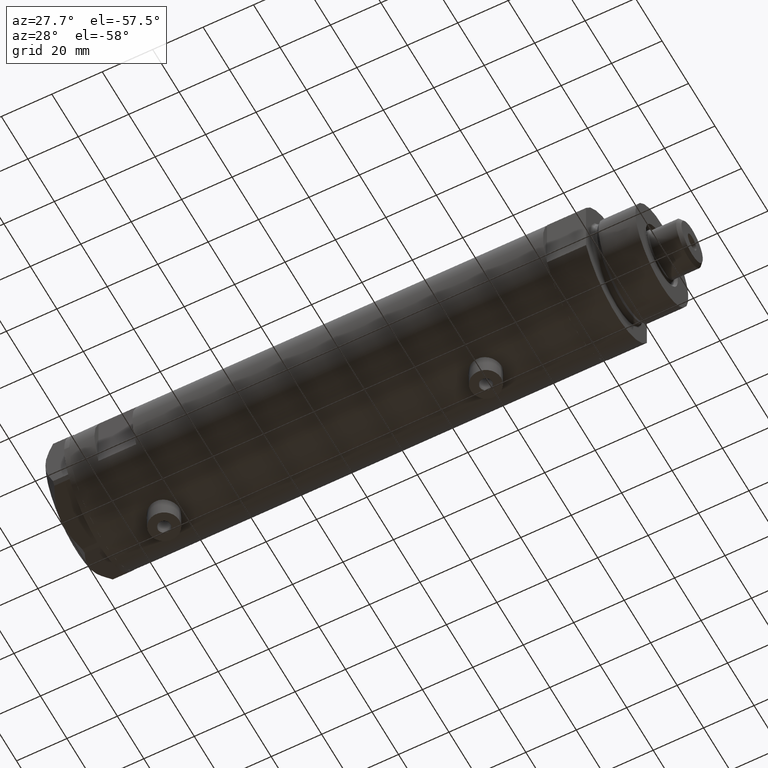
[diagram: clean part render]
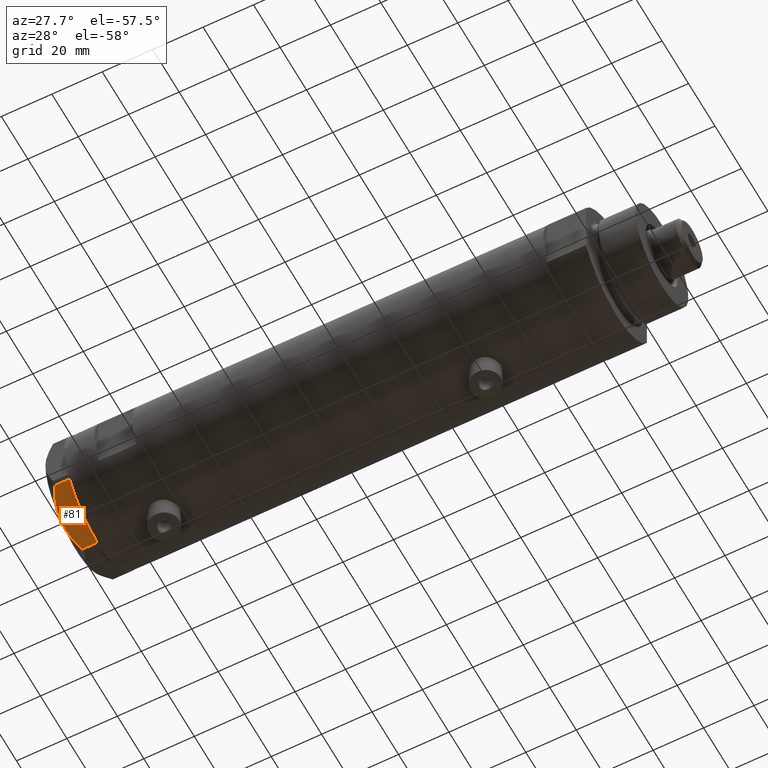
[diagram: same view with one face highlighted and labeled with its STEP entity id]
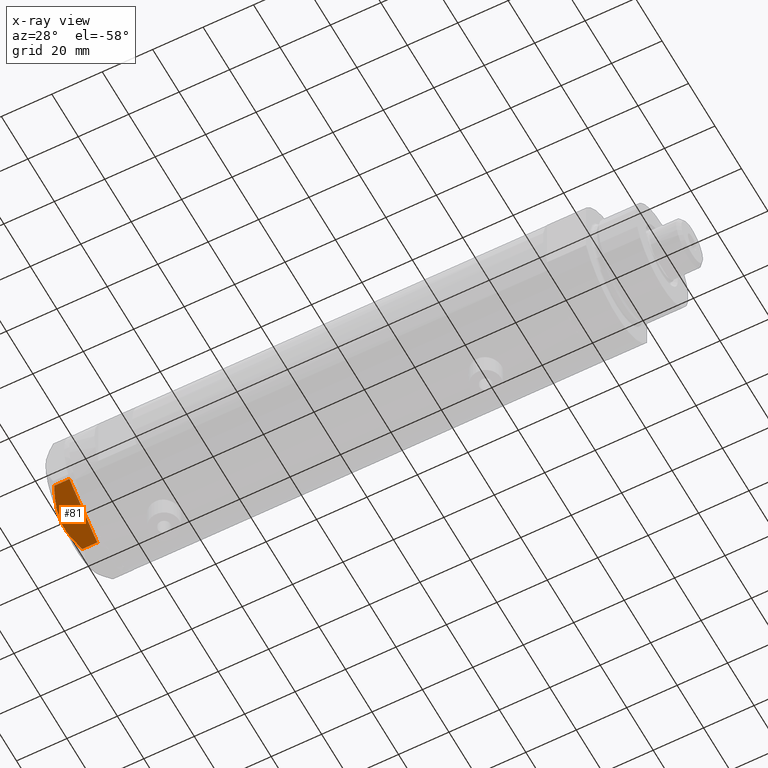
[diagram: x-ray of the same camera — body ghosted, the highlighted face saturated]
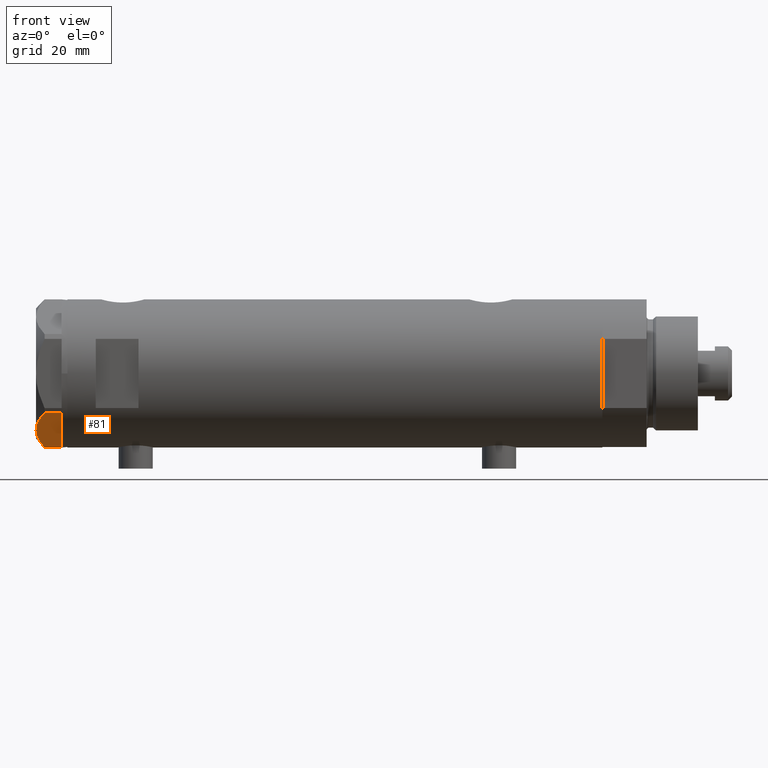
[diagram: same view with one face highlighted and labeled with its STEP entity id]
A machine part, auxiliary view. The second image highlights one B-rep face of the part: STEP entity #81.
The next image is the same camera in x-ray: the body ghosted, the highlighted face saturated — about 0% of this face is hidden behind the body in this view.
A second angle (front view) of the same face is appended — the face is thin or edge-on in the first view.
In plain terms, the highlighted planar face has unit normal (0, 0.5, 0.866).
Its self-contained STEP definition (entity closure, byte-faithful):
#81 = ADVANCED_FACE ( 'NONE', ( #2926 ), #3237, .F. ) ;
#121 = ORIENTED_EDGE ( 'NONE', *, *, #3123, .F. ) ;
#223 = CARTESIAN_POINT ( 'NONE',  ( -0.9699484522385772856, 25.99811238272273783, 0.000000000000000000 ) ) ;
#237 = CARTESIAN_POINT ( 'NONE',  ( 0.000000000000000000, 26.55811238272274366, 0.000000000000000000 ) ) ;
#258 = VECTOR ( 'NONE', #1888, 1000.000000000000000 ) ;
#287 = ORIENTED_EDGE ( 'NONE', *, *, #3790, .T. ) ;
#389 = DIRECTION ( 'NONE',  ( -0.8660254037844380415, -0.5000000000000008882, 0.000000000000000000 ) ) ;
#547 = VERTEX_POINT ( 'NONE', #4261 ) ;
#623 = DIRECTION ( 'NONE',  ( -0.8660254037844380415, -0.5000000000000008882, 0.000000000000000000 ) ) ;
#624 = CARTESIAN_POINT ( 'NONE',  ( -11.50000000000004441, 19.91858428704211548, 9.000000000000000000 ) ) ;
#859 = CARTESIAN_POINT ( 'NONE',  ( -20.35958612119326361, 14.80349985506240884, 6.844201024438374859 ) ) ;
#918 = VECTOR ( 'NONE', #2172, 1000.000000000000000 ) ;
#1246 = DIRECTION ( 'NONE',  ( 0.8660254037844380415, 0.5000000000000008882, 0.000000000000000000 ) ) ;
#1253 = CARTESIAN_POINT ( 'NONE',  ( -17.32831362639718975, 16.55360584592005679, 8.040681765829335248 ) ) ;
#1313 = VECTOR ( 'NONE', #2297, 1000.000000000000227 ) ;
#1334 = CARTESIAN_POINT ( 'NONE',  ( -11.04134848610939557, 20.18338686205100885, 9.000000000000094147 ) ) ;
#1360 = CARTESIAN_POINT ( 'NONE',  ( 0.000000000000000000, 26.55811238272274366, 0.000000000000000000 ) ) ;
#1385 = CARTESIAN_POINT ( 'NONE',  ( -0.9699484522384356211, 25.99811238272282310, 5.983800287807548912 ) ) ;
#1413 = ORIENTED_EDGE ( 'NONE', *, *, #2155, .T. ) ;
#1462 = CARTESIAN_POINT ( 'NONE',  ( -22.03005154776143115, 13.83905619136131726, 9.000000000000000000 ) ) ;
#1488 = EDGE_CURVE ( 'NONE', #3678, #5069, #3562, .T. ) ;
#1529 = B_SPLINE_CURVE_WITH_KNOTS ( 'NONE', 3,
 ( #4386, #2380, #4863, #1253, #3989, #4460, #1991, #859, #2457, #3591 ),
 .UNSPECIFIED., .F., .F.,
 ( 4, 2, 2, 2, 4 ),
 ( 0.01376519981810312397, 0.01998941321701588544, 0.02154546656674408145, 0.02310151991647227399, 0.02621362661592866600 ),
 .UNSPECIFIED. ) ;
#1534 = ORIENTED_EDGE ( 'NONE', *, *, #1488, .T. ) ;
#1568 = CARTESIAN_POINT ( 'NONE',  ( 0.000000000000000000, 26.55811238272274366, 0.000000000000000000 ) ) ;
#1715 = DIRECTION ( 'NONE',  ( 0.5000000000000009992, -0.8660254037844381525, 0.000000000000000000 ) ) ;
#1722 = VERTEX_POINT ( 'NONE', #2838 ) ;
#1796 = VERTEX_POINT ( 'NONE', #2918 ) ;
#1888 = DIRECTION ( 'NONE',  ( 0.000000000000000000, 0.000000000000000000, 1.000000000000000000 ) ) ;
#1991 = CARTESIAN_POINT ( 'NONE',  ( -19.07486218896994856, 15.54523556316589961, 7.397272853991406549 ) ) ;
#2023 = EDGE_CURVE ( 'NONE', #2456, #3678, #2672, .T. ) ;
#2155 = EDGE_CURVE ( 'NONE', #547, #4056, #3853, .T. ) ;
#2172 = DIRECTION ( 'NONE',  ( 0.000000000000000000, 0.000000000000000000, -1.000000000000000000 ) ) ;
#2173 = CARTESIAN_POINT ( 'NONE',  ( -7.836767740116576952, 22.03355241838985279, 8.637313967156947214 ) ) ;
#2241 = EDGE_CURVE ( 'NONE', #1722, #2456, #3510, .T. ) ;
#2297 = DIRECTION ( 'NONE',  ( -0.8660254037844380415, -0.5000000000000008882, 0.000000000000000000 ) ) ;
#2380 = CARTESIAN_POINT ( 'NONE',  ( -13.32175508098984729, 18.86679350063496585, 9.000000000000088818 ) ) ;
#2456 = VERTEX_POINT ( 'NONE', #2613 ) ;
#2457 = CARTESIAN_POINT ( 'NONE',  ( -21.20080365460318461, 14.31782268570115768, 6.431317509509388408 ) ) ;
#2562 = CARTESIAN_POINT ( 'NONE',  ( -6.946777556903624529, 22.54738849024398206, 8.426899937603780089 ) ) ;
#2613 = CARTESIAN_POINT ( 'NONE',  ( -22.00000000000008171, 13.85640646055089498, 0.000000000000000000 ) ) ;
#2672 = LINE ( 'NONE', #1360, #4620 ) ;
#2685 = VECTOR ( 'NONE', #389, 1000.000000000000227 ) ;
#2838 = CARTESIAN_POINT ( 'NONE',  ( -0.9999999999999089617, 25.98076211353316367, 0.000000000000000000 ) ) ;
#2918 = CARTESIAN_POINT ( 'NONE',  ( -11.50000000000004441, 19.91858428704211548, 9.000000000000000000 ) ) ;
#2926 = FACE_OUTER_BOUND ( 'NONE', #4847, .T. ) ;
#3004 = LINE ( 'NONE', #237, #1313 ) ;
#3013 = CARTESIAN_POINT ( 'NONE',  ( -9.656518383329848021, 20.98291889467267168, 8.907842277728436287 ) ) ;
#3053 = ORIENTED_EDGE ( 'NONE', *, *, #2023, .T. ) ;
#3123 = EDGE_CURVE ( 'NONE', #1796, #5069, #1529, .T. ) ;
#3124 = CARTESIAN_POINT ( 'NONE',  ( -22.03005154776144181, 13.83905619136131371, 5.983800287807625295 ) ) ;
#3237 = PLANE ( 'NONE',  #4182 ) ;
#3352 = CARTESIAN_POINT ( 'NONE',  ( -2.626494320835632390, 25.04170517956325881, 6.877782426143454586 ) ) ;
#3479 = B_SPLINE_CURVE_WITH_KNOTS ( 'NONE', 3,
 ( #1385, #3352, #3747, #2562, #2173, #4197, #3013, #4548, #1334, #624 ),
 .UNSPECIFIED., .F., .F.,
 ( 4, 2, 2, 2, 4 ),
 ( 0.001228959670438516723, 0.007497079744270820564, 0.01063113978118697227, 0.01219816979964504812, 0.01376519981810312397 ),
 .UNSPECIFIED. ) ;
#3510 = LINE ( 'NONE', #1568, #2685 ) ;
#3562 = LINE ( 'NONE', #1462, #258 ) ;
#3591 = CARTESIAN_POINT ( 'NONE',  ( -22.03005154776144181, 13.83905619136131371, 5.983800287807625295 ) ) ;
#3629 = CARTESIAN_POINT ( 'NONE',  ( 0.000000000000000000, 26.55811238272274366, 9.000000000000000000 ) ) ;
#3678 = VERTEX_POINT ( 'NONE', #4479 ) ;
#3747 = CARTESIAN_POINT ( 'NONE',  ( -4.320186229909880105, 24.06385169993494699, 7.629374868826106493 ) ) ;
#3790 = EDGE_CURVE ( 'NONE', #4056, #1722, #3004, .T. ) ;
#3853 = LINE ( 'NONE', #4247, #918 ) ;
#3989 = CARTESIAN_POINT ( 'NONE',  ( -17.77001848220191604, 16.29858742851882170, 7.892128867758443356 ) ) ;
#4056 = VERTEX_POINT ( 'NONE', #223 ) ;
#4068 = ORIENTED_EDGE ( 'NONE', *, *, #2241, .T. ) ;
#4182 = AXIS2_PLACEMENT_3D ( 'NONE', #3629, #1715, #1246 ) ;
#4197 = CARTESIAN_POINT ( 'NONE',  ( -9.197898616902920210, 21.24770314027494678, 8.852712638955802404 ) ) ;
#4247 = CARTESIAN_POINT ( 'NONE',  ( -0.9699484522385775076, 25.99811238272273783, 9.000000000000000000 ) ) ;
#4261 = CARTESIAN_POINT ( 'NONE',  ( -0.9699484522384356211, 25.99811238272282310, 5.983800287807548912 ) ) ;
#4386 = CARTESIAN_POINT ( 'NONE',  ( -11.50000000000004441, 19.91858428704211548, 9.000000000000000000 ) ) ;
#4393 = ORIENTED_EDGE ( 'NONE', *, *, #4438, .F. ) ;
#4438 = EDGE_CURVE ( 'NONE', #547, #1796, #3479, .T. ) ;
#4460 = CARTESIAN_POINT ( 'NONE',  ( -18.64279229058394804, 15.79469123530778951, 7.570552255229721084 ) ) ;
#4479 = CARTESIAN_POINT ( 'NONE',  ( -22.03005154776142760, 13.83905619136131904, 0.000000000000000000 ) ) ;
#4548 = CARTESIAN_POINT ( 'NONE',  ( -10.58093321976963175, 20.44920774001128549, 8.981686407609499767 ) ) ;
#4620 = VECTOR ( 'NONE', #623, 1000.000000000000227 ) ;
#4847 = EDGE_LOOP ( 'NONE', ( #3053, #1534, #121, #4393, #1413, #287, #4068 ) ) ;
#4863 = CARTESIAN_POINT ( 'NONE',  ( -15.11535457301033247, 17.83125835109856183, 8.707651728477001640 ) ) ;
#5069 = VERTEX_POINT ( 'NONE', #3124 ) ;